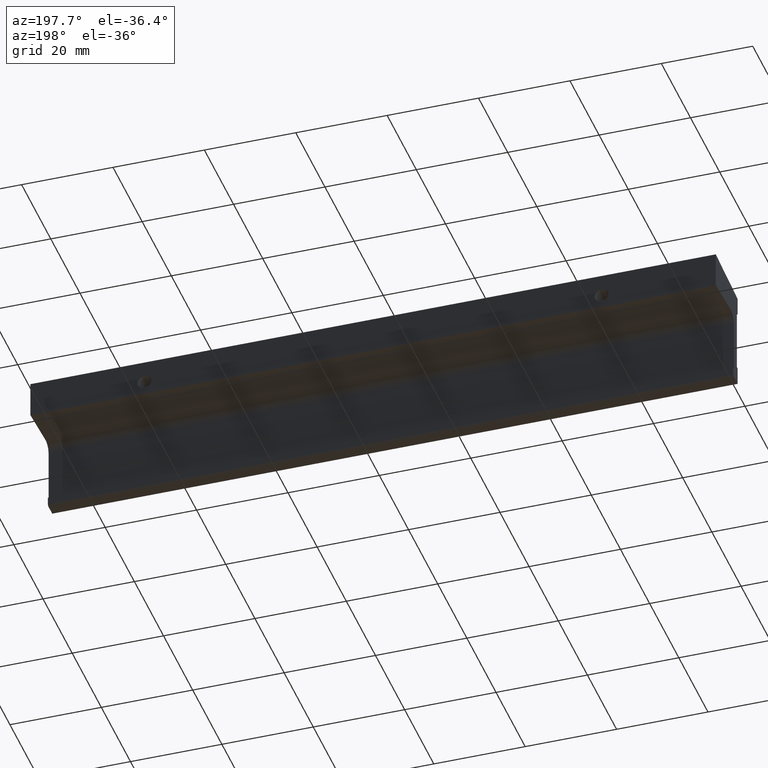
[diagram: clean part render]
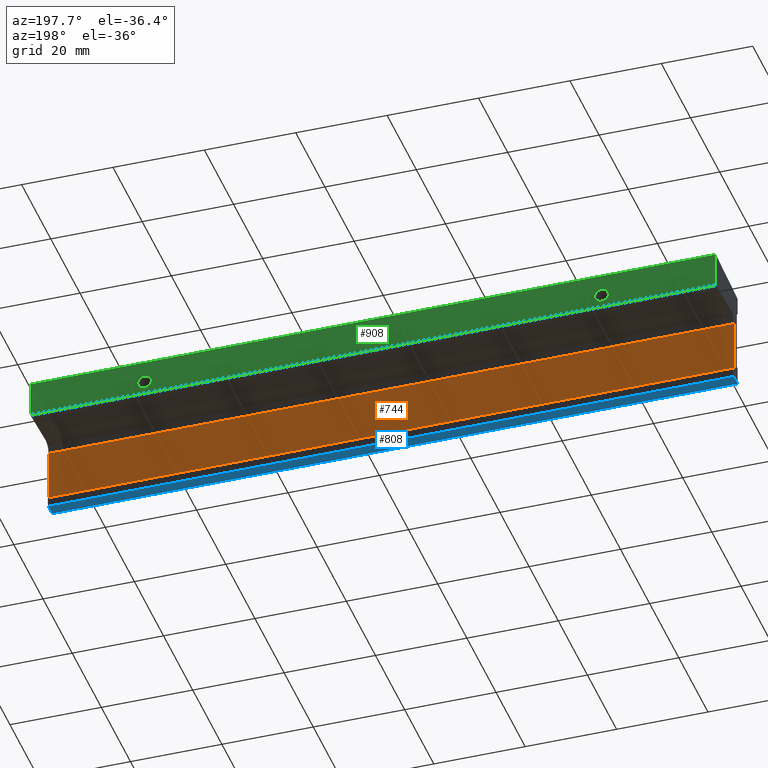
[diagram: same view with three faces highlighted in distinct colors, each labeled with its STEP entity id]
A machine part, auxiliary view with three faces highlighted in distinct colors.
Their STEP definitions:

[orange] entity #744 — the highlighted face is a freeform B-spline surface patch.
#467=CARTESIAN_POINT('',(0.0,-12.500000000000000,-9.166389999999892));
#468=VERTEX_POINT('',#467);
#484=CARTESIAN_POINT('',(0.0,-12.500000000000000,-21.0));
#485=VERTEX_POINT('',#484);
#486=CARTESIAN_POINT('',(0.0,-12.500000000000000,-21.0));
#487=CARTESIAN_POINT('',(0.0,-12.500000000000000,-9.166389999999892));
#488=QUASI_UNIFORM_CURVE('',1,(#486,#487),.UNSPECIFIED.,.F.,.U.);
#489=EDGE_CURVE('',#485,#468,#488,.T.);
#611=CARTESIAN_POINT('',(150.0,-12.500000000000000,-21.0));
#612=VERTEX_POINT('',#611);
#618=CARTESIAN_POINT('',(150.0,-12.500000000000000,-9.166389999999892));
#619=VERTEX_POINT('',#618);
#620=CARTESIAN_POINT('',(150.0,-12.500000000000000,-21.0));
#621=CARTESIAN_POINT('',(150.0,-12.500000000000000,-9.166389999999892));
#622=QUASI_UNIFORM_CURVE('',1,(#620,#621),.UNSPECIFIED.,.F.,.U.);
#623=EDGE_CURVE('',#612,#619,#622,.T.);
#721=CARTESIAN_POINT('',(150.0,-12.500000000000000,-9.166389999999892));
#722=CARTESIAN_POINT('',(0.0,-12.500000000000000,-9.166389999999892));
#723=QUASI_UNIFORM_CURVE('',1,(#721,#722),.UNSPECIFIED.,.F.,.U.);
#724=EDGE_CURVE('',#619,#468,#723,.T.);
#729=CARTESIAN_POINT('',(-7.492499709270897,-12.500000000000000,-8.575301647777573));
#730=CARTESIAN_POINT('',(-7.492499709270897,-12.500000000000000,-21.591089092827350));
#731=CARTESIAN_POINT('',(157.492503732584400,-12.500000000000000,-8.575301647777573));
#732=CARTESIAN_POINT('',(157.492503732584400,-12.500000000000000,-21.591089092827350));
#733=B_SPLINE_SURFACE_WITH_KNOTS('',1,1,((#729,#731),(#730,#732)),.UNSPECIFIED.,.F.,.F.,.U.,(2,2),(2,2),(0.0,13.015787445049780),(0.0,164.985003441855300),.UNSPECIFIED.);
#734=ORIENTED_EDGE('',*,*,#489,.T.);
#735=ORIENTED_EDGE('',*,*,#724,.F.);
#736=ORIENTED_EDGE('',*,*,#623,.F.);
#737=CARTESIAN_POINT('',(150.0,-12.500000000000000,-21.0));
#738=CARTESIAN_POINT('',(0.0,-12.500000000000000,-21.0));
#739=QUASI_UNIFORM_CURVE('',1,(#737,#738),.UNSPECIFIED.,.F.,.U.);
#740=EDGE_CURVE('',#612,#485,#739,.T.);
#741=ORIENTED_EDGE('',*,*,#740,.T.);
#742=EDGE_LOOP('',(#734,#735,#736,#741));
#743=FACE_OUTER_BOUND('',#742,.T.);
#744=ADVANCED_FACE('',(#743),#733,.F.);

[blue] entity #808 — the highlighted face is a freeform B-spline surface patch.
#505=CARTESIAN_POINT('',(0.0,-12.300000000000001,-23.0));
#506=VERTEX_POINT('',#505);
#512=CARTESIAN_POINT('',(0.0,-15.0,-23.0));
#513=VERTEX_POINT('',#512);
#514=CARTESIAN_POINT('',(0.0,-15.0,-23.0));
#515=CARTESIAN_POINT('',(0.0,-12.300000000000001,-23.0));
#516=QUASI_UNIFORM_CURVE('',1,(#514,#515),.UNSPECIFIED.,.F.,.U.);
#517=EDGE_CURVE('',#513,#506,#516,.T.);
#583=CARTESIAN_POINT('',(150.0,-15.0,-23.0));
#584=VERTEX_POINT('',#583);
#590=CARTESIAN_POINT('',(150.0,-12.300000000000001,-23.0));
#591=VERTEX_POINT('',#590);
#592=CARTESIAN_POINT('',(150.0,-15.0,-23.0));
#593=CARTESIAN_POINT('',(150.0,-12.300000000000001,-23.0));
#594=QUASI_UNIFORM_CURVE('',1,(#592,#593),.UNSPECIFIED.,.F.,.U.);
#595=EDGE_CURVE('',#584,#591,#594,.T.);
#785=CARTESIAN_POINT('',(150.0,-12.300000000000001,-23.0));
#786=CARTESIAN_POINT('',(0.0,-12.300000000000001,-23.0));
#787=QUASI_UNIFORM_CURVE('',1,(#785,#786),.UNSPECIFIED.,.F.,.U.);
#788=EDGE_CURVE('',#591,#506,#787,.T.);
#793=CARTESIAN_POINT('',(-7.492499709270897,-15.134864985120579,-23.0));
#794=CARTESIAN_POINT('',(157.492503732584400,-15.134864985120579,-23.0));
#795=CARTESIAN_POINT('',(-7.492499709270897,-12.165135135578829,-23.0));
#796=CARTESIAN_POINT('',(157.492503732584400,-12.165135135578829,-23.0));
#797=B_SPLINE_SURFACE_WITH_KNOTS('',1,1,((#793,#795),(#794,#796)),.UNSPECIFIED.,.F.,.F.,.U.,(2,2),(2,2),(0.0,164.985003441855300),(0.0,2.969729849541754),.UNSPECIFIED.);
#798=ORIENTED_EDGE('',*,*,#517,.T.);
#799=ORIENTED_EDGE('',*,*,#788,.F.);
#800=ORIENTED_EDGE('',*,*,#595,.F.);
#801=CARTESIAN_POINT('',(150.0,-15.0,-23.0));
#802=CARTESIAN_POINT('',(0.0,-15.0,-23.0));
#803=QUASI_UNIFORM_CURVE('',1,(#801,#802),.UNSPECIFIED.,.F.,.U.);
#804=EDGE_CURVE('',#584,#513,#803,.T.);
#805=ORIENTED_EDGE('',*,*,#804,.T.);
#806=EDGE_LOOP('',(#798,#799,#800,#805));
#807=FACE_OUTER_BOUND('',#806,.T.);
#808=ADVANCED_FACE('',(#807),#797,.F.);

[green] entity #908 — the highlighted face is a freeform B-spline surface patch.
#79=CARTESIAN_POINT('',(123.504623999411190,-2.775558E-017,-4.882311356269884));
#80=VERTEX_POINT('',#79);
#86=CARTESIAN_POINT('',(125.0,0.0,-3.500000000000000));
#87=VERTEX_POINT('',#86);
#88=CARTESIAN_POINT('',(125.0,0.0,-3.500000000000000));
#89=CARTESIAN_POINT('',(123.613414262770050,0.0,-3.500000000000000));
#90=CARTESIAN_POINT('',(123.504623999411210,-2.775558E-017,-4.882311356269884));
#98=(BOUNDED_CURVE()B_SPLINE_CURVE(2,(#88,#89,#90),.UNSPECIFIED.,.F.,.U.)B_SPLINE_CURVE_WITH_KNOTS((3,3),(0.0,0.236331300601048),.UNSPECIFIED.)CURVE()GEOMETRIC_REPRESENTATION_ITEM()RATIONAL_B_SPLINE_CURVE((1.0,0.723120658642358,0.969723356105620))REPRESENTATION_ITEM(''));
#99=EDGE_CURVE('',#87,#80,#98,.T.);
#101=CARTESIAN_POINT('',(126.495376000588810,-2.775558E-017,-5.117688643730116));
#102=VERTEX_POINT('',#101);
#103=CARTESIAN_POINT('',(126.495376000588790,-2.775558E-017,-5.117688643730116));
#104=CARTESIAN_POINT('',(126.499999999999970,0.0,-5.058935160650495));
#105=CARTESIAN_POINT('',(126.500000000000000,0.0,-5.0));
#106=CARTESIAN_POINT('',(126.500000000000010,0.0,-3.499999999999999));
#107=CARTESIAN_POINT('',(125.0,0.0,-3.500000000000000));
#115=(BOUNDED_CURVE()B_SPLINE_CURVE(2,(#103,#104,#105,#106,#107),.UNSPECIFIED.,.F.,.U.)B_SPLINE_CURVE_WITH_KNOTS((3,2,3),(0.736331300601047,0.750000000000000,1.0),.UNSPECIFIED.)CURVE()GEOMETRIC_REPRESENTATION_ITEM()RATIONAL_B_SPLINE_CURVE((0.969723356105619,0.983986122544189,1.0,0.707106781186548,1.0))REPRESENTATION_ITEM(''));
#116=EDGE_CURVE('',#102,#87,#115,.T.);
#192=CARTESIAN_POINT('',(125.0,0.0,-6.500000000000001));
#193=VERTEX_POINT('',#192);
#194=CARTESIAN_POINT('',(125.0,0.0,-6.500000000000001));
#195=CARTESIAN_POINT('',(126.386585737229950,0.0,-6.500000000000003));
#196=CARTESIAN_POINT('',(126.495376000588820,-2.775558E-017,-5.117688643730116));
#204=(BOUNDED_CURVE()B_SPLINE_CURVE(2,(#194,#195,#196),.UNSPECIFIED.,.F.,.U.)B_SPLINE_CURVE_WITH_KNOTS((3,3),(0.500000000000000,0.736331300601047),.UNSPECIFIED.)CURVE()GEOMETRIC_REPRESENTATION_ITEM()RATIONAL_B_SPLINE_CURVE((1.0,0.723120658642359,0.969723356105618))REPRESENTATION_ITEM(''));
#205=EDGE_CURVE('',#193,#102,#204,.T.);
#207=CARTESIAN_POINT('',(123.504623999411190,-2.775558E-017,-4.882311356269885));
#208=CARTESIAN_POINT('',(123.500000000000010,0.0,-4.941064839349506));
#209=CARTESIAN_POINT('',(123.500000000000000,0.0,-5.0));
#210=CARTESIAN_POINT('',(123.500000000000000,0.0,-6.500000000000003));
#211=CARTESIAN_POINT('',(125.0,0.0,-6.500000000000001));
#219=(BOUNDED_CURVE()B_SPLINE_CURVE(2,(#207,#208,#209,#210,#211),.UNSPECIFIED.,.F.,.U.)B_SPLINE_CURVE_WITH_KNOTS((3,2,3),(0.236331300601048,0.250000000000000,0.500000000000000),.UNSPECIFIED.)CURVE()GEOMETRIC_REPRESENTATION_ITEM()RATIONAL_B_SPLINE_CURVE((0.969723356105620,0.983986122544189,1.0,0.707106781186548,1.0))REPRESENTATION_ITEM(''));
#220=EDGE_CURVE('',#80,#193,#219,.T.);
#261=CARTESIAN_POINT('',(23.504623999411201,-2.775558E-017,-4.882311356269884));
#262=VERTEX_POINT('',#261);
#268=CARTESIAN_POINT('',(25.0,0.0,-3.500000000000000));
#269=VERTEX_POINT('',#268);
#270=CARTESIAN_POINT('',(25.0,0.0,-3.500000000000000));
#271=CARTESIAN_POINT('',(23.613414262770057,0.0,-3.500000000000000));
#272=CARTESIAN_POINT('',(23.504623999411201,-2.775558E-017,-4.882311356269884));
#280=(BOUNDED_CURVE()B_SPLINE_CURVE(2,(#270,#271,#272),.UNSPECIFIED.,.F.,.U.)B_SPLINE_CURVE_WITH_KNOTS((3,3),(0.0,0.236331300601048),.UNSPECIFIED.)CURVE()GEOMETRIC_REPRESENTATION_ITEM()RATIONAL_B_SPLINE_CURVE((1.0,0.723120658642358,0.969723356105620))REPRESENTATION_ITEM(''));
#281=EDGE_CURVE('',#269,#262,#280,.T.);
#283=CARTESIAN_POINT('',(26.495376000588809,-2.775558E-017,-5.117688643730116));
#284=VERTEX_POINT('',#283);
#285=CARTESIAN_POINT('',(26.495376000588802,-2.775558E-017,-5.117688643730116));
#286=CARTESIAN_POINT('',(26.500000000000004,0.0,-5.058935160650494));
#287=CARTESIAN_POINT('',(26.500000000000000,0.0,-5.0));
#288=CARTESIAN_POINT('',(26.500000000000000,0.0,-3.499999999999999));
#289=CARTESIAN_POINT('',(25.0,0.0,-3.500000000000000));
#297=(BOUNDED_CURVE()B_SPLINE_CURVE(2,(#285,#286,#287,#288,#289),.UNSPECIFIED.,.F.,.U.)B_SPLINE_CURVE_WITH_KNOTS((3,2,3),(0.736331300601048,0.750000000000000,1.0),.UNSPECIFIED.)CURVE()GEOMETRIC_REPRESENTATION_ITEM()RATIONAL_B_SPLINE_CURVE((0.969723356105620,0.983986122544189,1.0,0.707106781186548,1.0))REPRESENTATION_ITEM(''));
#298=EDGE_CURVE('',#284,#269,#297,.T.);
#374=CARTESIAN_POINT('',(25.0,0.0,-6.500000000000001));
#375=VERTEX_POINT('',#374);
#376=CARTESIAN_POINT('',(25.0,0.0,-6.500000000000001));
#377=CARTESIAN_POINT('',(26.386585737229939,0.0,-6.500000000000003));
#378=CARTESIAN_POINT('',(26.495376000588809,-2.775558E-017,-5.117688643730116));
#386=(BOUNDED_CURVE()B_SPLINE_CURVE(2,(#376,#377,#378),.UNSPECIFIED.,.F.,.U.)B_SPLINE_CURVE_WITH_KNOTS((3,3),(0.500000000000000,0.736331300601047),.UNSPECIFIED.)CURVE()GEOMETRIC_REPRESENTATION_ITEM()RATIONAL_B_SPLINE_CURVE((1.0,0.723120658642359,0.969723356105618))REPRESENTATION_ITEM(''));
#387=EDGE_CURVE('',#375,#284,#386,.T.);
#389=CARTESIAN_POINT('',(23.504623999411198,-2.775558E-017,-4.882311356269885));
#390=CARTESIAN_POINT('',(23.499999999999996,0.0,-4.941064839349506));
#391=CARTESIAN_POINT('',(23.500000000000000,0.0,-5.0));
#392=CARTESIAN_POINT('',(23.500000000000004,0.0,-6.500000000000003));
#393=CARTESIAN_POINT('',(25.0,0.0,-6.500000000000001));
#401=(BOUNDED_CURVE()B_SPLINE_CURVE(2,(#389,#390,#391,#392,#393),.UNSPECIFIED.,.F.,.U.)B_SPLINE_CURVE_WITH_KNOTS((3,2,3),(0.236331300601048,0.250000000000000,0.500000000000000),.UNSPECIFIED.)CURVE()GEOMETRIC_REPRESENTATION_ITEM()RATIONAL_B_SPLINE_CURVE((0.969723356105620,0.983986122544189,1.0,0.707106781186548,1.0))REPRESENTATION_ITEM(''));
#402=EDGE_CURVE('',#262,#375,#401,.T.);
#446=CARTESIAN_POINT('',(0.0,0.0,0.0));
#447=VERTEX_POINT('',#446);
#453=CARTESIAN_POINT('',(0.0,0.0,-8.0));
#454=VERTEX_POINT('',#453);
#455=CARTESIAN_POINT('',(0.0,0.0,-8.0));
#456=CARTESIAN_POINT('',(0.0,0.0,0.0));
#457=QUASI_UNIFORM_CURVE('',1,(#455,#456),.UNSPECIFIED.,.F.,.U.);
#458=EDGE_CURVE('',#454,#447,#457,.T.);
#642=CARTESIAN_POINT('',(150.0,0.0,-8.0));
#643=VERTEX_POINT('',#642);
#649=CARTESIAN_POINT('',(150.0,0.0,0.0));
#650=VERTEX_POINT('',#649);
#651=CARTESIAN_POINT('',(150.0,0.0,-8.0));
#652=CARTESIAN_POINT('',(150.0,0.0,0.0));
#653=QUASI_UNIFORM_CURVE('',1,(#651,#652),.UNSPECIFIED.,.F.,.U.);
#654=EDGE_CURVE('',#643,#650,#653,.T.);
#676=CARTESIAN_POINT('',(150.0,0.0,0.0));
#677=CARTESIAN_POINT('',(0.0,0.0,0.0));
#678=QUASI_UNIFORM_CURVE('',1,(#676,#677),.UNSPECIFIED.,.F.,.U.);
#679=EDGE_CURVE('',#650,#447,#678,.T.);
#690=CARTESIAN_POINT('',(150.0,0.0,-8.0));
#691=CARTESIAN_POINT('',(0.0,0.0,-8.0));
#692=QUASI_UNIFORM_CURVE('',1,(#690,#691),.UNSPECIFIED.,.F.,.U.);
#693=EDGE_CURVE('',#643,#454,#692,.T.);
#885=CARTESIAN_POINT('',(-7.492499709270897,0.0,0.399599984494448));
#886=CARTESIAN_POINT('',(-7.492499709270897,0.0,-8.399600199071170));
#887=CARTESIAN_POINT('',(157.492503732584400,0.0,0.399599984494448));
#888=CARTESIAN_POINT('',(157.492503732584400,0.0,-8.399600199071170));
#889=B_SPLINE_SURFACE_WITH_KNOTS('',1,1,((#885,#887),(#886,#888)),.UNSPECIFIED.,.F.,.F.,.U.,(2,2),(2,2),(0.0,8.799200183565617),(0.0,164.985003441855300),.UNSPECIFIED.);
#890=ORIENTED_EDGE('',*,*,#458,.T.);
#891=ORIENTED_EDGE('',*,*,#679,.F.);
#892=ORIENTED_EDGE('',*,*,#654,.F.);
#893=ORIENTED_EDGE('',*,*,#693,.T.);
#894=EDGE_LOOP('',(#890,#891,#892,#893));
#895=FACE_OUTER_BOUND('',#894,.T.);
#896=ORIENTED_EDGE('',*,*,#387,.T.);
#897=ORIENTED_EDGE('',*,*,#298,.T.);
#898=ORIENTED_EDGE('',*,*,#281,.T.);
#899=ORIENTED_EDGE('',*,*,#402,.T.);
#900=EDGE_LOOP('',(#896,#897,#898,#899));
#901=FACE_BOUND('',#900,.T.);
#902=ORIENTED_EDGE('',*,*,#205,.T.);
#903=ORIENTED_EDGE('',*,*,#116,.T.);
#904=ORIENTED_EDGE('',*,*,#99,.T.);
#905=ORIENTED_EDGE('',*,*,#220,.T.);
#906=EDGE_LOOP('',(#902,#903,#904,#905));
#907=FACE_BOUND('',#906,.T.);
#908=ADVANCED_FACE('',(#895,#901,#907),#889,.F.);